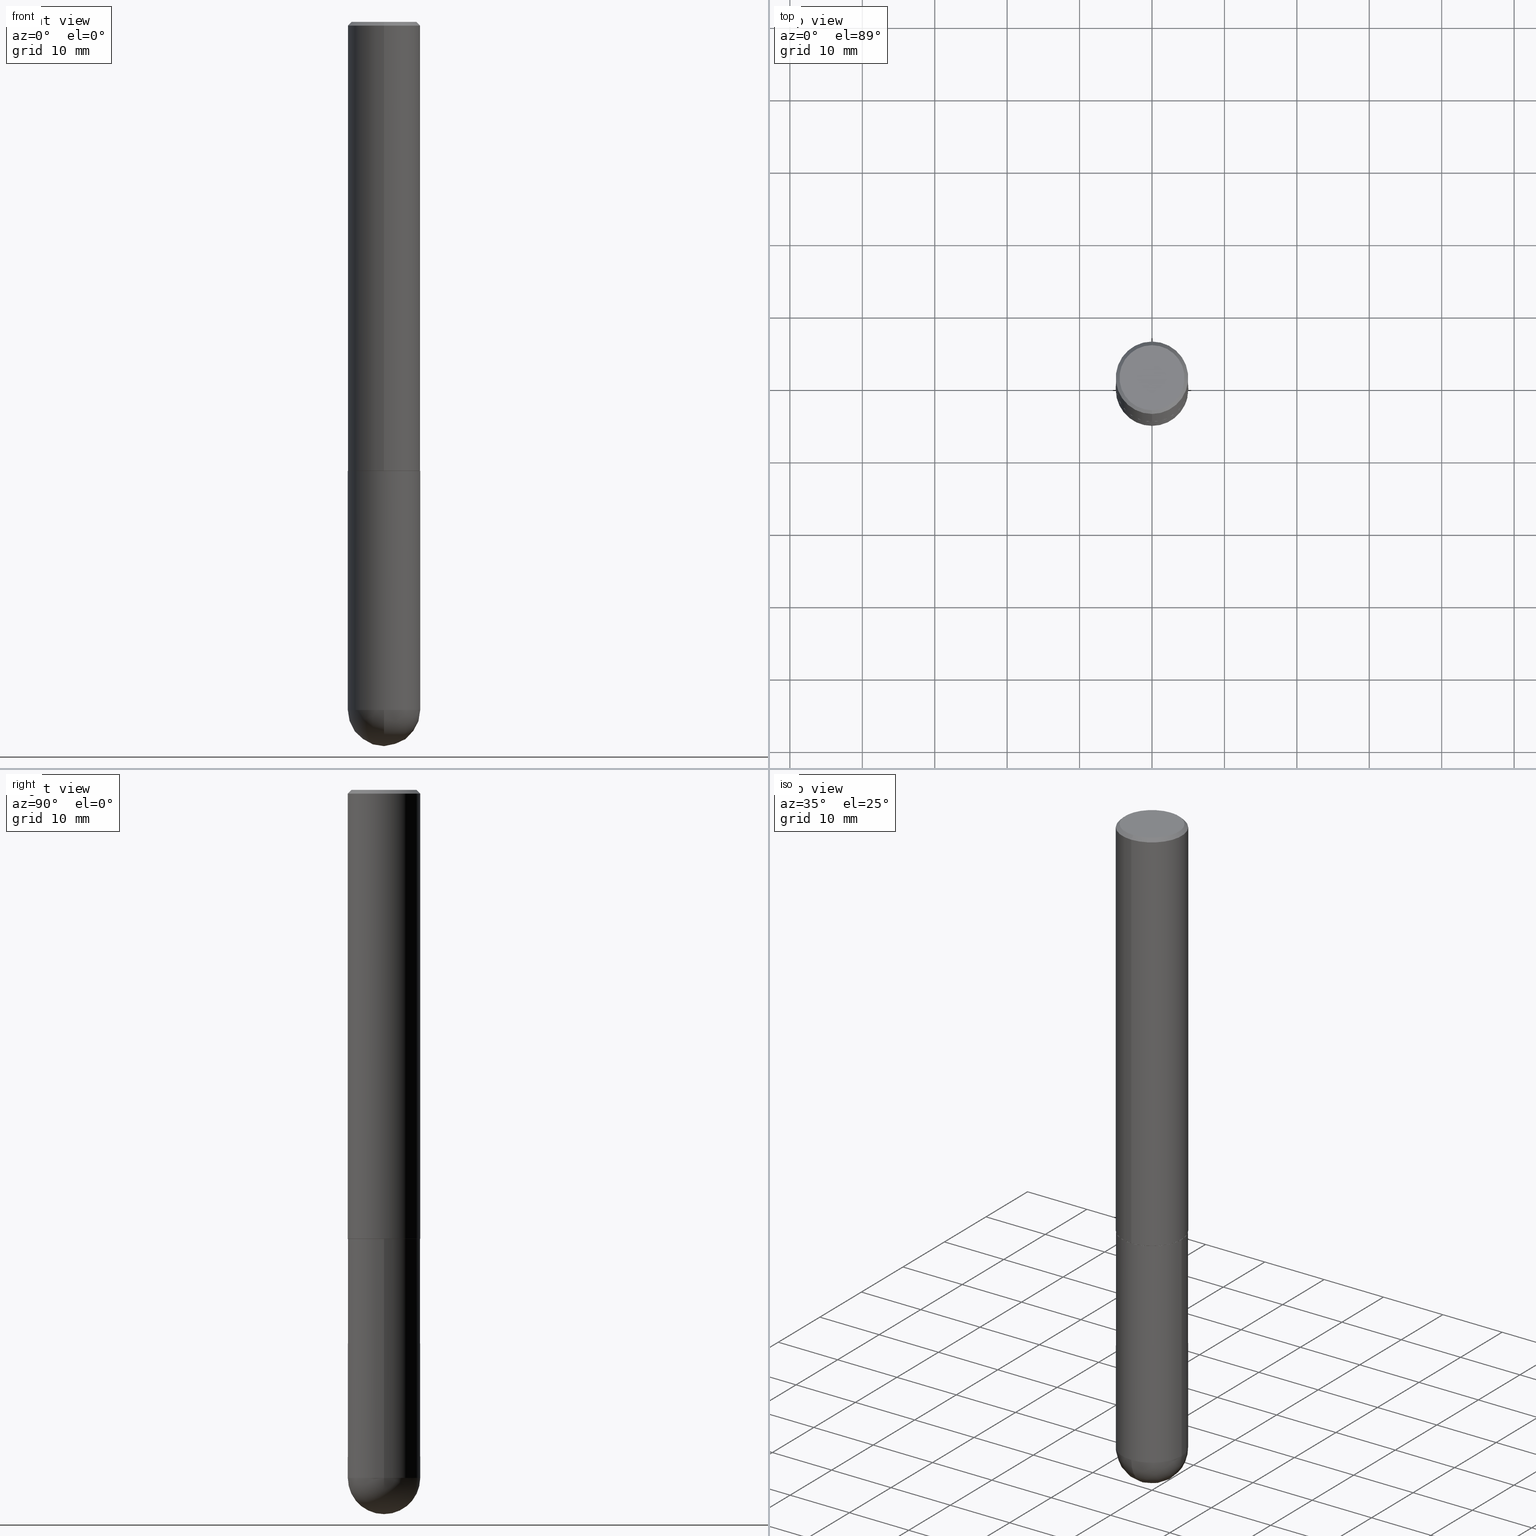
[diagram: canonical four-view strip — front | top / right | iso, engineering-drawing reading convention]
A machine part, canonical four-view strip (front | top / right | iso — engineering-drawing reading convention). The complete STEP part file that produces these views, byte-faithful:
ISO-10303-21;
HEADER;
FILE_DESCRIPTION (( 'STEP AP203' ),
    '1' );
FILE_NAME ('49614.STEP',
    '2024-04-10T12:30:28',
    ( '' ),
    ( '' ),
    'SwSTEP 2.0',
    'SolidWorks 2023',
    '' );
FILE_SCHEMA (( 'CONFIG_CONTROL_DESIGN' ));
ENDSEC;

DATA;
#1 = VERTEX_POINT ( 'NONE', #268 ) ;
#2 = AXIS2_PLACEMENT_3D ( 'NONE', #226, #303, #145 ) ;
#3 = EDGE_LOOP ( 'NONE', ( #138, #84, #357, #282, #387 ) ) ;
#4 = DATE_TIME_ROLE ( 'classification_date' ) ;
#5 = ORIENTED_EDGE ( 'NONE', *, *, #242, .T. ) ;
#6 = ORIENTED_EDGE ( 'NONE', *, *, #147, .F. ) ;
#7 = DATE_AND_TIME ( #248, #161 ) ;
#8 = DIRECTION ( 'NONE',  ( -4.937700262164462845E-15, -0.7071067811865329178, 0.7071067811865620056 ) ) ;
#9 = EDGE_CURVE ( 'NONE', #326, #388, #153, .T. ) ;
#10 = AXIS2_PLACEMENT_3D ( 'NONE', #258, #82, #76 ) ;
#11 = ORIENTED_EDGE ( 'NONE', *, *, #399, .T. ) ;
#12 = DIRECTION ( 'NONE',  ( 5.024295867787975615E-15, 0.7071067811865378028, 0.7071067811865571207 ) ) ;
#13 = CARTESIAN_POINT ( 'NONE',  ( 5.966731782860215927E-29, -8.525812390780097403E-15, -2.440900000000000070 ) ) ;
#14 = DIRECTION ( 'NONE',  ( -2.444480225679141214E-29, 3.492897042394238758E-15, 1.000000000000000000 ) ) ;
#15 = FACE_OUTER_BOUND ( 'NONE', #35, .T. ) ;
#16 = CC_DESIGN_PERSON_AND_ORGANIZATION_ASSIGNMENT ( #250, #231, ( #180 ) ) ;
#17 = LINE ( 'NONE', #281, #244 ) ;
#18 = LINE ( 'NONE', #329, #206 ) ;
#19 = FACE_OUTER_BOUND ( 'NONE', #215, .T. ) ;
#20 = DIRECTION ( 'NONE',  ( 6.982962677686265133E-15, 1.000000000000000000, -3.491137977679279029E-15 ) ) ;
#21 = EDGE_LOOP ( 'NONE', ( #189, #102, #22, #133 ) ) ;
#22 = ORIENTED_EDGE ( 'NONE', *, *, #9, .F. ) ;
#23 = DATE_AND_TIME ( #208, #175 ) ;
#24 = DIRECTION ( 'NONE',  ( -2.445468806185136597E-29, 3.491481338843145583E-15, 1.000000000000000000 ) ) ;
#25 = VECTOR ( 'NONE', #8, 39.37007874015748854 ) ;
#26 = LOCAL_TIME ( 8, 30, 28.00000000000000000, #105 ) ;
#27 = APPROVAL_STATUS ( 'not_yet_approved' ) ;
#28 = ADVANCED_FACE ( 'NONE', ( #19 ), #50, .T. ) ;
#29 = AXIS2_PLACEMENT_3D ( 'NONE', #194, #334, #20 ) ;
#30 = CARTESIAN_POINT ( 'NONE',  ( -0.1968499999999999694, -9.391806989384456184E-15, -3.740150000000000752 ) ) ;
#31 = APPLICATION_CONTEXT ( 'configuration controlled 3d designs of mechanical parts and assemblies' ) ;
#32 = PERSON_AND_ORGANIZATION_ROLE ( 'creator' ) ;
#33 = DATE_AND_TIME ( #224, #26 ) ;
#34 = AXIS2_PLACEMENT_3D ( 'NONE', #203, #118, #163 ) ;
#35 = EDGE_LOOP ( 'NONE', ( #290, #393, #214, #318 ) ) ;
#36 = ORIENTED_EDGE ( 'NONE', *, *, #324, .T. ) ;
#37 = CALENDAR_DATE ( 2024, 10, 4 ) ;
#38 = ADVANCED_BREP_SHAPE_REPRESENTATION ( '49614', ( #320, #43, #151 ), #143 ) ;
#39 = PLANE ( 'NONE',  #193 ) ;
#40 = DIRECTION ( 'NONE',  ( -2.444480225679141495E-29, 3.492897042394238758E-15, 1.000000000000000000 ) ) ;
#41 = LINE ( 'NONE', #338, #309 ) ;
#42 = CIRCLE ( 'NONE', #283, 0.1968499999999999694 ) ;
#43 = MANIFOLD_SOLID_BREP ( 'Body-Move/Copy2[2]', #60 ) ;
#44 = VERTEX_POINT ( 'NONE', #370 ) ;
#45 = COORDINATED_UNIVERSAL_TIME_OFFSET ( 5, 0, .BEHIND. ) ;
#46 = DIRECTION ( 'NONE',  ( 6.982962677686265922E-15, 1.000000000000000000, 0.000000000000000000 ) ) ;
#47 = LINE ( 'NONE', #341, #260 ) ;
#48 = CARTESIAN_POINT ( 'NONE',  ( 1.374596203102542200E-15, 0.1968499999999999694, -0.02000000000000072900 ) ) ;
#49 = CARTESIAN_POINT ( 'NONE',  ( 1.304766576325678902E-15, 0.1768499999999999239, -5.192926875021004532E-16 ) ) ;
#50 = CYLINDRICAL_SURFACE ( 'NONE', #125, 0.1968500000000001915 ) ;
#51 = CC_DESIGN_PERSON_AND_ORGANIZATION_ASSIGNMENT ( #279, #124, ( #252 ) ) ;
#52 = FACE_OUTER_BOUND ( 'NONE', #293, .T. ) ;
#53 = VERTEX_POINT ( 'NONE', #48 ) ;
#54 = CIRCLE ( 'NONE', #408, 0.1968499999999999694 ) ;
#55 = APPROVAL_PERSON_ORGANIZATION ( #305, #127, #377 ) ;
#56 = FACE_OUTER_BOUND ( 'NONE', #288, .T. ) ;
#57 = APPLICATION_PROTOCOL_DEFINITION ( 'international standard', 'config_control_design', 1994, #31 ) ;
#58 = DIRECTION ( 'NONE',  ( 1.000000000000000000, -6.982962677686266711E-15, 4.876176775795935793E-29 ) ) ;
#59 = CALENDAR_DATE ( 2024, 10, 4 ) ;
#60 = CLOSED_SHELL ( 'NONE', ( #88, #69, #313, #312, #28, #243, #187, #190 ) ) ;
#61 = CC_DESIGN_PERSON_AND_ORGANIZATION_ASSIGNMENT ( #354, #32, ( #252 ) ) ;
#62 = AXIS2_PLACEMENT_3D ( 'NONE', #272, #154, #277 ) ;
#63 = VERTEX_POINT ( 'NONE', #342 ) ;
#64 = ORIENTED_EDGE ( 'NONE', *, *, #386, .T. ) ;
#65 = VECTOR ( 'NONE', #12, 39.37007874015748854 ) ;
#66 = ORIENTED_EDGE ( 'NONE', *, *, #353, .T. ) ;
#67 = COORDINATED_UNIVERSAL_TIME_OFFSET ( 5, 0, .BEHIND. ) ;
#68 = ORIENTED_EDGE ( 'NONE', *, *, #353, .F. ) ;
#69 = ADVANCED_FACE ( 'NONE', ( #15 ), #404, .T. ) ;
#70 = CARTESIAN_POINT ( 'NONE',  ( 9.146420155453340551E-29, -1.305866392947419340E-14, -3.740150000000000752 ) ) ;
#71 = EDGE_CURVE ( 'NONE', #379, #389, #122, .T. ) ;
#72 = DIRECTION ( 'NONE',  ( 1.000000000000000000, -6.982962677686269866E-15, 0.000000000000000000 ) ) ;
#73 =( CONVERSION_BASED_UNIT ( 'INCH', #169 ) LENGTH_UNIT ( ) NAMED_UNIT ( #159 ) );
#74 = VECTOR ( 'NONE', #394, 39.37007874015748143 ) ;
#75 = DIRECTION ( 'NONE',  ( 1.000000000000000000, -6.982962677686269866E-15, 0.000000000000000000 ) ) ;
#76 = DIRECTION ( 'NONE',  ( -6.982962677686265922E-15, -1.000000000000000000, 3.492897042394239153E-15 ) ) ;
#77 = EDGE_CURVE ( 'NONE', #234, #330, #228, .T. ) ;
#78 = ORIENTED_EDGE ( 'NONE', *, *, #128, .T. ) ;
#79 = DIRECTION ( 'NONE',  ( 1.000000000000000000, -6.982962677686269866E-15, 0.000000000000000000 ) ) ;
#80 =( LENGTH_UNIT ( ) NAMED_UNIT ( * ) SI_UNIT ( $, .METRE. ) );
#81 = EDGE_LOOP ( 'NONE', ( #68, #120, #174, #306 ) ) ;
#82 = DIRECTION ( 'NONE',  ( -2.444480225679141495E-29, 3.492897042394238758E-15, 1.000000000000000000 ) ) ;
#83 = FACE_OUTER_BOUND ( 'NONE', #3, .T. ) ;
#84 = ORIENTED_EDGE ( 'NONE', *, *, #294, .T. ) ;
#85 = AXIS2_PLACEMENT_3D ( 'NONE', #119, #148, #199 ) ;
#86 = CIRCLE ( 'NONE', #10, 0.1768499999999999239 ) ;
#87 = COORDINATED_UNIVERSAL_TIME_OFFSET ( 5, 0, .BEHIND. ) ;
#88 = ADVANCED_FACE ( 'NONE', ( #236 ), #141, .T. ) ;
#89 = ORIENTED_EDGE ( 'NONE', *, *, #152, .T. ) ;
#90 = PERSON_AND_ORGANIZATION ( #276, #96 ) ;
#91 = CC_DESIGN_PERSON_AND_ORGANIZATION_ASSIGNMENT ( #90, #349, ( #240 ) ) ;
#92 = UNCERTAINTY_MEASURE_WITH_UNIT (LENGTH_MEASURE( 1.000000000000000082E-05 ), #73, 'distance_accuracy_value', 'NONE');
#93 = DIRECTION ( 'NONE',  ( 0.000000000000000000, 0.000000000000000000, 1.000000000000000000 ) ) ;
#94 = ADVANCED_FACE ( 'NONE', ( #56 ), #202, .F. ) ;
#95 = CONICAL_SURFACE ( 'NONE', #385, 0.1958499999999999963, 0.7853981633974311816 ) ;
#96 = ORGANIZATION ( 'UNSPECIFIED', 'UNSPECIFIED', '' ) ;
#97 = ORIENTED_EDGE ( 'NONE', *, *, #220, .F. ) ;
#98 = ORIENTED_EDGE ( 'NONE', *, *, #128, .F. ) ;
#99 = APPROVAL_STATUS ( 'not_yet_approved' ) ;
#100 = CIRCLE ( 'NONE', #188, 0.1968500000000000250 ) ;
#101 = EDGE_CURVE ( 'NONE', #358, #205, #42, .T. ) ;
#102 = ORIENTED_EDGE ( 'NONE', *, *, #286, .T. ) ;
#103 = CARTESIAN_POINT ( 'NONE',  ( 0.1968500000000000250, -9.896953003084774574E-15, -2.440900000000000070 ) ) ;
#104 = ORIENTED_EDGE ( 'NONE', *, *, #278, .F. ) ;
#105 = COORDINATED_UNIVERSAL_TIME_OFFSET ( 5, 0, .BEHIND. ) ;
#106 = ADVANCED_FACE ( 'NONE', ( #196 ), #116, .T. ) ;
#107 = DIRECTION ( 'NONE',  ( -1.000000000000000000, 6.982962677686265922E-15, -4.883557194083113462E-29 ) ) ;
#108 = DIRECTION ( 'NONE',  ( -1.000000000000000000, 6.982962677686265922E-15, -4.876176775795935793E-29 ) ) ;
#109 = PRODUCT_DEFINITION_SHAPE ( 'NONE', 'NONE',  #180 ) ;
#110 = FACE_OUTER_BOUND ( 'NONE', #247, .T. ) ;
#111 = AXIS2_PLACEMENT_3D ( 'NONE', #348, #149, #307 ) ;
#112 = ORIENTED_EDGE ( 'NONE', *, *, #147, .T. ) ;
#113 = CC_DESIGN_APPROVAL ( #127, ( #252 ) ) ;
#114 = DIRECTION ( 'NONE',  ( 1.000000000000000000, -6.982962677686262766E-15, 0.000000000000000000 ) ) ;
#115 = SPHERICAL_SURFACE ( 'NONE', #210, 0.1968500000000001360 ) ;
#116 = CYLINDRICAL_SURFACE ( 'NONE', #150, 0.1968499999999999694 ) ;
#117 = CARTESIAN_POINT ( 'NONE',  ( 0.1968499999999999694, -1.216510656783075637E-14, -3.740150000000000752 ) ) ;
#118 = DIRECTION ( 'NONE',  ( -2.445468806185136597E-29, 3.491481338843145583E-15, 1.000000000000000000 ) ) ;
#119 = CARTESIAN_POINT ( 'NONE',  ( 0.000000000000000000, 0.000000000000000000, 0.000000000000000000 ) ) ;
#120 = ORIENTED_EDGE ( 'NONE', *, *, #220, .T. ) ;
#121 = CIRCLE ( 'NONE', #2, 0.1968500000000000527 ) ;
#122 = CIRCLE ( 'NONE', #343, 0.1958499999999999963 ) ;
#123 = EDGE_LOOP ( 'NONE', ( #363, #11, #177, #142, #5 ) ) ;
#124 = PERSON_AND_ORGANIZATION_ROLE ( 'design_supplier' ) ;
#125 = AXIS2_PLACEMENT_3D ( 'NONE', #262, #207, #146 ) ;
#126 = APPROVAL_ROLE ( '' ) ;
#127 = APPROVAL ( #266, 'UNSPECIFIED' ) ;
#128 = EDGE_CURVE ( 'NONE', #388, #326, #322, .T. ) ;
#129 = ORIENTED_EDGE ( 'NONE', *, *, #374, .T. ) ;
#130 = VERTEX_POINT ( 'NONE', #49 ) ;
#131 = AXIS2_PLACEMENT_3D ( 'NONE', #183, #315, #310 ) ;
#132 = DIRECTION ( 'NONE',  ( 2.444480225679141214E-29, -3.492897042394238758E-15, -1.000000000000000000 ) ) ;
#133 = ORIENTED_EDGE ( 'NONE', *, *, #274, .F. ) ;
#134 = CARTESIAN_POINT ( 'NONE',  ( 8.815300377539453183E-29, -1.353284629761424370E-14, -3.740150000000000308 ) ) ;
#135 = CARTESIAN_POINT ( 'NONE',  ( 1.374596203102601167E-15, 0.1968499999999914762, -2.440900000000000514 ) ) ;
#136 = DIRECTION ( 'NONE',  ( 2.444480225679141495E-29, -3.492897042394238758E-15, -1.000000000000000000 ) ) ;
#137 = CYLINDRICAL_SURFACE ( 'NONE', #34, 0.1968499999999999694 ) ;
#138 = ORIENTED_EDGE ( 'NONE', *, *, #399, .F. ) ;
#139 = SPHERICAL_SURFACE ( 'NONE', #217, 0.1968500000000001360 ) ;
#140 =( NAMED_UNIT ( * ) SI_UNIT ( $, .STERADIAN. ) SOLID_ANGLE_UNIT ( ) );
#141 = CONICAL_SURFACE ( 'NONE', #237, 0.1958499999999999963, 0.7853981633974311816 ) ;
#142 = ORIENTED_EDGE ( 'NONE', *, *, #212, .F. ) ;
#143 =( GEOMETRIC_REPRESENTATION_CONTEXT ( 3 ) GLOBAL_UNCERTAINTY_ASSIGNED_CONTEXT ( ( #92 ) ) GLOBAL_UNIT_ASSIGNED_CONTEXT ( ( #73, #300, #140 ) ) REPRESENTATION_CONTEXT ( 'NONE', 'WORKASPACE' ) );
#144 = DIRECTION ( 'NONE',  ( -2.445468806185136877E-29, 3.491481338843145188E-15, 1.000000000000000000 ) ) ;
#145 = DIRECTION ( 'NONE',  ( -6.982962677686265133E-15, -1.000000000000000000, 3.491137977679279029E-15 ) ) ;
#146 = DIRECTION ( 'NONE',  ( -6.982962677686265133E-15, -1.000000000000000000, 3.492897042394238758E-15 ) ) ;
#147 = EDGE_CURVE ( 'NONE', #227, #234, #411, .T. ) ;
#148 = DIRECTION ( 'NONE',  ( -2.444480225679141495E-29, 3.492897042394238758E-15, 1.000000000000000000 ) ) ;
#149 = DIRECTION ( 'NONE',  ( -2.444480225679141495E-29, 3.492897042394238758E-15, 1.000000000000000000 ) ) ;
#150 = AXIS2_PLACEMENT_3D ( 'NONE', #178, #24, #58 ) ;
#151 = AXIS2_PLACEMENT_3D ( 'NONE', #179, #93, #380 ) ;
#152 = EDGE_CURVE ( 'NONE', #1, #155, #100, .T. ) ;
#153 = CIRCLE ( 'NONE', #182, 0.1968500000000003303 ) ;
#154 = DIRECTION ( 'NONE',  ( -1.000000000000000000, 7.105427357601001070E-15, -4.926315508542082329E-29 ) ) ;
#155 = VERTEX_POINT ( 'NONE', #103 ) ;
#156 = ORIENTED_EDGE ( 'NONE', *, *, #77, .F. ) ;
#157 = LINE ( 'NONE', #225, #74 ) ;
#158 = ORIENTED_EDGE ( 'NONE', *, *, #347, .T. ) ;
#159 = DIMENSIONAL_EXPONENTS ( 1.000000000000000000, 0.000000000000000000, 0.000000000000000000, 0.000000000000000000, 0.000000000000000000, 0.000000000000000000, 0.000000000000000000 ) ;
#160 = AXIS2_PLACEMENT_3D ( 'NONE', #264, #403, #222 ) ;
#161 = LOCAL_TIME ( 8, 30, 28.00000000000000000, #45 ) ;
#162 = DIRECTION ( 'NONE',  ( -6.982962677686265922E-15, -1.000000000000000000, 4.184602492209747448E-15 ) ) ;
#163 = DIRECTION ( 'NONE',  ( 1.000000000000000000, -6.982962677686266711E-15, 4.876176775795935793E-29 ) ) ;
#164 = DIRECTION ( 'NONE',  ( -2.445468806185136597E-29, 3.491481338843145583E-15, 1.000000000000000000 ) ) ;
#165 = CARTESIAN_POINT ( 'NONE',  ( 5.966731782860215927E-29, -8.525812390780097403E-15, -2.440900000000000070 ) ) ;
#166 = CARTESIAN_POINT ( 'NONE',  ( 1.395150661665018026E-15, 0.1958499999999914754, -2.440900000000000958 ) ) ;
#167 = DIRECTION ( 'NONE',  ( -6.982962677686265922E-15, -1.000000000000000000, 4.184602492209747448E-15 ) ) ;
#168 = DIRECTION ( 'NONE',  ( 6.982962677686265922E-15, 1.000000000000000000, -2.775563112689114723E-15 ) ) ;
#169 = LENGTH_MEASURE_WITH_UNIT ( LENGTH_MEASURE( 0.02539999999999999897 ), #80 );
#170 = CARTESIAN_POINT ( 'NONE',  ( 9.146420155453340551E-29, -1.305866392947419340E-14, -3.740150000000000752 ) ) ;
#171 = COORDINATED_UNIVERSAL_TIME_OFFSET ( 5, 0, .BEHIND. ) ;
#172 = CARTESIAN_POINT ( 'NONE',  ( 0.1968499999999999694, -1.374596203102541411E-15, 9.598753983154298056E-30 ) ) ;
#173 = CIRCLE ( 'NONE', #241, 0.1958499999999999963 ) ;
#174 = ORIENTED_EDGE ( 'NONE', *, *, #369, .T. ) ;
#175 = LOCAL_TIME ( 8, 30, 28.00000000000000000, #171 ) ;
#176 = DATE_TIME_ROLE ( 'creation_date' ) ;
#177 = ORIENTED_EDGE ( 'NONE', *, *, #327, .F. ) ;
#178 = CARTESIAN_POINT ( 'NONE',  ( 0.000000000000000000, 0.000000000000000000, 0.000000000000000000 ) ) ;
#179 = CARTESIAN_POINT ( 'NONE',  ( 0.000000000000000000, 0.000000000000000000, 0.000000000000000000 ) ) ;
#180 = PRODUCT_DEFINITION ( 'UNKNOWN', '', #252, #209 ) ;
#181 = APPLICATION_PROTOCOL_DEFINITION ( 'international standard', 'config_control_design', 1994, #257 ) ;
#182 = AXIS2_PLACEMENT_3D ( 'NONE', #298, #259, #401 ) ;
#183 = CARTESIAN_POINT ( 'NONE',  ( 5.969144809017299038E-29, -8.522356799982232966E-15, -2.440900000000000070 ) ) ;
#184 = ORIENTED_EDGE ( 'NONE', *, *, #316, .F. ) ;
#185 = CC_DESIGN_DATE_AND_TIME_ASSIGNMENT ( #33, #4, ( #360 ) ) ;
#186 = SECURITY_CLASSIFICATION_LEVEL ( 'unclassified' ) ;
#187 = ADVANCED_FACE ( 'NONE', ( #402 ), #325, .F. ) ;
#188 = AXIS2_PLACEMENT_3D ( 'NONE', #292, #221, #114 ) ;
#189 = ORIENTED_EDGE ( 'NONE', *, *, #71, .T. ) ;
#190 = ADVANCED_FACE ( 'NONE', ( #52 ), #39, .F. ) ;
#191 = LINE ( 'NONE', #172, #359 ) ;
#192 = CARTESIAN_POINT ( 'NONE',  ( 1.398703375343789145E-15, 0.1968499999999918093, -2.439900000000000624 ) ) ;
#193 = AXIS2_PLACEMENT_3D ( 'NONE', #255, #132, #361 ) ;
#194 = CARTESIAN_POINT ( 'NONE',  ( 4.888960451358293429E-31, -6.985794084788491174E-17, -0.02000000000000004205 ) ) ;
#195 = DIRECTION ( 'NONE',  ( 6.982962677686265922E-15, 1.000000000000000000, -2.775563112689114723E-15 ) ) ;
#196 = FACE_OUTER_BOUND ( 'NONE', #123, .T. ) ;
#197 = DATE_AND_TIME ( #37, #218 ) ;
#198 = FACE_OUTER_BOUND ( 'NONE', #219, .T. ) ;
#199 = DIRECTION ( 'NONE',  ( -6.982962677686265133E-15, -1.000000000000000000, 3.492897042394238758E-15 ) ) ;
#200 = CARTESIAN_POINT ( 'NONE',  ( 1.391597947986215747E-15, 0.1958499999999914754, -2.440900000000000958 ) ) ;
#201 = CARTESIAN_POINT ( 'NONE',  ( 8.815300377539453183E-29, -1.353284629761424370E-14, -3.740150000000000308 ) ) ;
#202 = PLANE ( 'NONE',  #249 ) ;
#203 = CARTESIAN_POINT ( 'NONE',  ( 0.000000000000000000, 0.000000000000000000, 0.000000000000000000 ) ) ;
#204 = CONICAL_SURFACE ( 'NONE', #29, 0.1968500000000000527, 0.7853981633974479459 ) ;
#205 = VERTEX_POINT ( 'NONE', #117 ) ;
#206 = VECTOR ( 'NONE', #372, 39.37007874015748143 ) ;
#207 = DIRECTION ( 'NONE',  ( -2.444480225679141495E-29, 3.492897042394238758E-15, 1.000000000000000000 ) ) ;
#208 = CALENDAR_DATE ( 2024, 10, 4 ) ;
#209 = DESIGN_CONTEXT ( 'detailed design', #257, 'design' ) ;
#210 = AXIS2_PLACEMENT_3D ( 'NONE', #201, #267, #195 ) ;
#211 = DIRECTION ( 'NONE',  ( -2.444480225679141495E-29, 3.492897042394238758E-15, 1.000000000000000000 ) ) ;
#212 = EDGE_CURVE ( 'NONE', #205, #155, #191, .T. ) ;
#213 = ORIENTED_EDGE ( 'NONE', *, *, #274, .T. ) ;
#214 = ORIENTED_EDGE ( 'NONE', *, *, #369, .F. ) ;
#215 = EDGE_LOOP ( 'NONE', ( #321, #78, #36, #245 ) ) ;
#216 = SHAPE_DEFINITION_REPRESENTATION ( #109, #38 ) ;
#217 = AXIS2_PLACEMENT_3D ( 'NONE', #134, #107, #168 ) ;
#218 = LOCAL_TIME ( 8, 30, 28.00000000000000000, #67 ) ;
#219 = EDGE_LOOP ( 'NONE', ( #97, #184, #64, #129 ) ) ;
#220 = EDGE_CURVE ( 'NONE', #44, #63, #157, .T. ) ;
#221 = DIRECTION ( 'NONE',  ( -2.445468806185136597E-29, 3.491481338843145583E-15, 1.000000000000000000 ) ) ;
#222 = DIRECTION ( 'NONE',  ( -6.982962677686265133E-15, -1.000000000000000000, 3.491137977679279029E-15 ) ) ;
#223 = ORIENTED_EDGE ( 'NONE', *, *, #242, .F. ) ;
#224 = CALENDAR_DATE ( 2024, 10, 4 ) ;
#225 = CARTESIAN_POINT ( 'NONE',  ( -1.350489030861325626E-15, -0.1968500000000001082, -0.01999999999999935510 ) ) ;
#226 = CARTESIAN_POINT ( 'NONE',  ( 4.888960451358293429E-31, -6.985794084788491174E-17, -0.02000000000000004205 ) ) ;
#227 = VERTEX_POINT ( 'NONE', #263 ) ;
#228 = CIRCLE ( 'NONE', #291, 0.1968499999999999694 ) ;
#229 = DIRECTION ( 'NONE',  ( -2.445468806185136597E-29, 3.491481338843145583E-15, 1.000000000000000000 ) ) ;
#230 = ORIENTED_EDGE ( 'NONE', *, *, #327, .T. ) ;
#231 = PERSON_AND_ORGANIZATION_ROLE ( 'creator' ) ;
#232 = DIRECTION ( 'NONE',  ( -2.445468806185136597E-29, 3.491481338843145583E-15, 1.000000000000000000 ) ) ;
#233 = APPROVAL ( #99, 'UNSPECIFIED' ) ;
#234 = VERTEX_POINT ( 'NONE', #371 ) ;
#235 = CARTESIAN_POINT ( 'NONE',  ( 5.966731782860215927E-29, -8.525812390780097403E-15, -2.440900000000000070 ) ) ;
#236 = FACE_OUTER_BOUND ( 'NONE', #21, .T. ) ;
#237 = AXIS2_PLACEMENT_3D ( 'NONE', #13, #376, #366 ) ;
#238 = EDGE_LOOP ( 'NONE', ( #6, #158, #254, #156 ) ) ;
#239 = CC_DESIGN_PERSON_AND_ORGANIZATION_ASSIGNMENT ( #319, #390, ( #360 ) ) ;
#240 = PRODUCT ( '49614', '49614', '', ( #409 ) ) ;
#241 = AXIS2_PLACEMENT_3D ( 'NONE', #235, #40, #162 ) ;
#242 = EDGE_CURVE ( 'NONE', #205, #234, #269, .T. ) ;
#243 = ADVANCED_FACE ( 'NONE', ( #368 ), #95, .T. ) ;
#244 = VECTOR ( 'NONE', #211, 39.37007874015748143 ) ;
#245 = ORIENTED_EDGE ( 'NONE', *, *, #374, .F. ) ;
#246 = ORIENTED_EDGE ( 'NONE', *, *, #101, .F. ) ;
#247 = EDGE_LOOP ( 'NONE', ( #345, #112, #223, #246 ) ) ;
#248 = CALENDAR_DATE ( 2024, 10, 4 ) ;
#249 = AXIS2_PLACEMENT_3D ( 'NONE', #135, #256, #108 ) ;
#250 = PERSON_AND_ORGANIZATION ( #276, #96 ) ;
#251 = AXIS2_PLACEMENT_3D ( 'NONE', #396, #136, #392 ) ;
#252 = PRODUCT_DEFINITION_FORMATION_WITH_SPECIFIED_SOURCE ( 'ANY', '', #240, .NOT_KNOWN. ) ;
#253 = DIRECTION ( 'NONE',  ( 1.000000000000000000, -6.982962677686265922E-15, 4.883557194083112340E-29 ) ) ;
#254 = ORIENTED_EDGE ( 'NONE', *, *, #294, .F. ) ;
#255 = CARTESIAN_POINT ( 'NONE',  ( 1.234936949548815604E-15, 0.1768499999999999239, -5.685057647247607263E-16 ) ) ;
#256 = DIRECTION ( 'NONE',  ( 2.438088387897960049E-29, -3.491481338843145188E-15, -1.000000000000000000 ) ) ;
#257 = APPLICATION_CONTEXT ( 'configuration controlled 3d designs of mechanical parts and assemblies' ) ;
#258 = CARTESIAN_POINT ( 'NONE',  ( -2.406007882312265336E-45, 3.437924237562976850E-31, 9.842615444532026278E-17 ) ) ;
#259 = DIRECTION ( 'NONE',  ( -2.444480225679141495E-29, 3.492897042394238758E-15, 1.000000000000000000 ) ) ;
#260 = VECTOR ( 'NONE', #297, 39.37007874015748143 ) ;
#261 = DIRECTION ( 'NONE',  ( -2.444480225679141495E-29, 3.492897042394238758E-15, 1.000000000000000000 ) ) ;
#262 = CARTESIAN_POINT ( 'NONE',  ( 0.000000000000000000, 0.000000000000000000, 0.000000000000000000 ) ) ;
#263 = CARTESIAN_POINT ( 'NONE',  ( 9.305107886238245984E-29, -1.420809081304490838E-14, -3.937000000000000721 ) ) ;
#264 = CARTESIAN_POINT ( 'NONE',  ( 4.888960451358293429E-31, -6.985794084788491174E-17, -0.02000000000000004205 ) ) ;
#265 = ORIENTED_EDGE ( 'NONE', *, *, #71, .F. ) ;
#266 = APPROVAL_STATUS ( 'not_yet_approved' ) ;
#267 = DIRECTION ( 'NONE',  ( -1.000000000000000000, 6.982962677686265922E-15, -4.883557194083113462E-29 ) ) ;
#268 = CARTESIAN_POINT ( 'NONE',  ( -0.1968500000000000250, -9.391806989384456184E-15, -2.440900000000000070 ) ) ;
#269 = CIRCLE ( 'NONE', #314, 0.1968499999999999694 ) ;
#270 = CC_DESIGN_DATE_AND_TIME_ASSIGNMENT ( #23, #176, ( #180 ) ) ;
#271 = APPROVAL_ROLE ( '' ) ;
#272 = CARTESIAN_POINT ( 'NONE',  ( 8.815300377539453183E-29, -1.353284629761424370E-14, -3.740150000000000308 ) ) ;
#273 = PRODUCT_RELATED_PRODUCT_CATEGORY ( 'detail', '', ( #240 ) ) ;
#274 = EDGE_CURVE ( 'NONE', #379, #326, #364, .T. ) ;
#275 = LOCAL_TIME ( 8, 30, 28.00000000000000000, #87 ) ;
#276 = PERSON ( 'UNSPECIFIED', 'UNSPECIFIED', 'UNSPECIFIED', ('UNSPECIFIED'), ('UNSPECIFIED'), ('UNSPECIFIED') ) ;
#277 = DIRECTION ( 'NONE',  ( -7.105427357601001070E-15, -1.000000000000000000, 0.000000000000000000 ) ) ;
#278 = EDGE_CURVE ( 'NONE', #389, #379, #173, .T. ) ;
#279 = PERSON_AND_ORGANIZATION ( #276, #96 ) ;
#280 = CARTESIAN_POINT ( 'NONE',  ( -1.398703375343667858E-15, -0.1968500000000133754, -3.740150000000000308 ) ) ;
#281 = CARTESIAN_POINT ( 'NONE',  ( -1.374596203102542594E-15, -0.1968500000000001915, 6.875767827953065398E-16 ) ) ;
#282 = ORIENTED_EDGE ( 'NONE', *, *, #212, .T. ) ;
#283 = AXIS2_PLACEMENT_3D ( 'NONE', #170, #301, #75 ) ;
#284 = CC_DESIGN_APPROVAL ( #381, ( #180 ) ) ;
#285 = ORIENTED_EDGE ( 'NONE', *, *, #316, .T. ) ;
#286 = EDGE_CURVE ( 'NONE', #389, #388, #299, .T. ) ;
#287 = ADVANCED_FACE ( 'NONE', ( #110 ), #139, .T. ) ;
#288 = EDGE_LOOP ( 'NONE', ( #230, #89 ) ) ;
#289 = CARTESIAN_POINT ( 'NONE',  ( -1.367613240424795443E-15, -0.1958500000000085450, -2.440899999999999181 ) ) ;
#290 = ORIENTED_EDGE ( 'NONE', *, *, #9, .T. ) ;
#291 = AXIS2_PLACEMENT_3D ( 'NONE', #339, #164, #373 ) ;
#292 = CARTESIAN_POINT ( 'NONE',  ( 5.969144809017299038E-29, -8.522356799982232966E-15, -2.440900000000000070 ) ) ;
#293 = EDGE_LOOP ( 'NONE', ( #285, #66 ) ) ;
#294 = EDGE_CURVE ( 'NONE', #330, #358, #54, .T. ) ;
#295 = APPROVAL_DATE_TIME ( #7, #233 ) ;
#296 = CARTESIAN_POINT ( 'NONE',  ( 5.966731782860215927E-29, -8.525812390780097403E-15, -2.440900000000000070 ) ) ;
#297 = DIRECTION ( 'NONE',  ( 4.937700262164545676E-15, 0.7071067811865447972, -0.7071067811865502373 ) ) ;
#298 = CARTESIAN_POINT ( 'NONE',  ( 5.964287302634537555E-29, -8.522319493737701952E-15, -2.439899999999999736 ) ) ;
#299 = LINE ( 'NONE', #200, #65 ) ;
#300 =( NAMED_UNIT ( * ) PLANE_ANGLE_UNIT ( ) SI_UNIT ( $, .RADIAN. ) );
#301 = DIRECTION ( 'NONE',  ( -2.445468806185136597E-29, 3.491481338843145583E-15, 1.000000000000000000 ) ) ;
#302 = AXIS2_PLACEMENT_3D ( 'NONE', #400, #253, #46 ) ;
#303 = DIRECTION ( 'NONE',  ( -2.444480225679141495E-29, 3.492897042394238758E-15, 1.000000000000000000 ) ) ;
#304 = ORIENTED_EDGE ( 'NONE', *, *, #278, .T. ) ;
#305 = PERSON_AND_ORGANIZATION ( #276, #96 ) ;
#306 = ORIENTED_EDGE ( 'NONE', *, *, #386, .F. ) ;
#307 = DIRECTION ( 'NONE',  ( -6.982962677686265133E-15, -1.000000000000000000, 4.163344669033668535E-15 ) ) ;
#308 = CIRCLE ( 'NONE', #131, 0.1968500000000000250 ) ;
#309 = VECTOR ( 'NONE', #406, 39.37007874015748143 ) ;
#310 = DIRECTION ( 'NONE',  ( 1.000000000000000000, -6.982962677686262766E-15, 0.000000000000000000 ) ) ;
#311 = PERSON_AND_ORGANIZATION ( #276, #96 ) ;
#312 = ADVANCED_FACE ( 'NONE', ( #198 ), #204, .T. ) ;
#313 = ADVANCED_FACE ( 'NONE', ( #375 ), #332, .T. ) ;
#314 = AXIS2_PLACEMENT_3D ( 'NONE', #70, #232, #79 ) ;
#315 = DIRECTION ( 'NONE',  ( -2.445468806185136597E-29, 3.491481338843145583E-15, 1.000000000000000000 ) ) ;
#316 = EDGE_CURVE ( 'NONE', #130, #44, #86, .T. ) ;
#317 = DIRECTION ( 'NONE',  ( -6.982962677686265922E-15, -1.000000000000000000, 3.492897042394239153E-15 ) ) ;
#318 = ORIENTED_EDGE ( 'NONE', *, *, #324, .F. ) ;
#319 = PERSON_AND_ORGANIZATION ( #276, #96 ) ;
#320 = MANIFOLD_SOLID_BREP ( 'Body-Move/Copy2[1]', #410 ) ;
#321 = ORIENTED_EDGE ( 'NONE', *, *, #405, .F. ) ;
#322 = CIRCLE ( 'NONE', #111, 0.1968500000000003303 ) ;
#323 = ORIENTED_EDGE ( 'NONE', *, *, #286, .F. ) ;
#324 = EDGE_CURVE ( 'NONE', #326, #63, #17, .T. ) ;
#325 = PLANE ( 'NONE',  #398 ) ;
#326 = VERTEX_POINT ( 'NONE', #355 ) ;
#327 = EDGE_CURVE ( 'NONE', #155, #1, #308, .T. ) ;
#328 = DIRECTION ( 'NONE',  ( -6.982962677686265922E-15, -1.000000000000000000, 4.184602492209747448E-15 ) ) ;
#329 = CARTESIAN_POINT ( 'NONE',  ( -0.1968499999999999694, 1.398703375343756999E-15, -9.682923725166782276E-30 ) ) ;
#330 = VERTEX_POINT ( 'NONE', #30 ) ;
#331 = PERSON_AND_ORGANIZATION ( #276, #96 ) ;
#332 = CONICAL_SURFACE ( 'NONE', #251, 0.1968500000000000527, 0.7853981633974479459 ) ;
#333 = CC_DESIGN_SECURITY_CLASSIFICATION ( #360, ( #252 ) ) ;
#334 = DIRECTION ( 'NONE',  ( 2.444480225679141495E-29, -3.492897042394238758E-15, -1.000000000000000000 ) ) ;
#335 = EDGE_LOOP ( 'NONE', ( #265, #104 ) ) ;
#336 = APPROVAL_DATE_TIME ( #197, #381 ) ;
#337 = DIRECTION ( 'NONE',  ( -6.982962677686265922E-15, -1.000000000000000000, 3.492897042394238758E-15 ) ) ;
#338 = CARTESIAN_POINT ( 'NONE',  ( 1.398703375343758182E-15, 0.1968500000000001915, -6.875767827953065398E-16 ) ) ;
#339 = CARTESIAN_POINT ( 'NONE',  ( 9.146420155453340551E-29, -1.305866392947419340E-14, -3.740150000000000752 ) ) ;
#340 = CARTESIAN_POINT ( 'NONE',  ( 9.146420155453340551E-29, -1.305866392947419340E-14, -3.740150000000000752 ) ) ;
#341 = CARTESIAN_POINT ( 'NONE',  ( 1.374596203102542200E-15, 0.1968499999999999694, -0.02000000000000072900 ) ) ;
#342 = CARTESIAN_POINT ( 'NONE',  ( -1.350489030861325626E-15, -0.1968500000000001082, -0.01999999999999935510 ) ) ;
#343 = AXIS2_PLACEMENT_3D ( 'NONE', #395, #407, #167 ) ;
#344 = CC_DESIGN_APPROVAL ( #233, ( #360 ) ) ;
#345 = ORIENTED_EDGE ( 'NONE', *, *, #347, .F. ) ;
#346 = DATE_AND_TIME ( #59, #275 ) ;
#347 = EDGE_CURVE ( 'NONE', #227, #358, #378, .T. ) ;
#348 = CARTESIAN_POINT ( 'NONE',  ( 5.964287302634537555E-29, -8.522319493737701952E-15, -2.439899999999999736 ) ) ;
#349 = PERSON_AND_ORGANIZATION_ROLE ( 'design_owner' ) ;
#350 = AXIS2_PLACEMENT_3D ( 'NONE', #351, #412, #317 ) ;
#351 = CARTESIAN_POINT ( 'NONE',  ( -2.406007882312265336E-45, 3.437924237562976850E-31, 9.842615444532026278E-17 ) ) ;
#352 = APPROVAL_DATE_TIME ( #346, #127 ) ;
#353 = EDGE_CURVE ( 'NONE', #44, #130, #367, .T. ) ;
#354 = PERSON_AND_ORGANIZATION ( #276, #96 ) ;
#355 = CARTESIAN_POINT ( 'NONE',  ( -1.374596203102484021E-15, -0.1968500000000088512, -2.439899999999998847 ) ) ;
#356 = CIRCLE ( 'NONE', #160, 0.1968500000000000527 ) ;
#357 = ORIENTED_EDGE ( 'NONE', *, *, #101, .T. ) ;
#358 = VERTEX_POINT ( 'NONE', #280 ) ;
#359 = VECTOR ( 'NONE', #144, 39.37007874015748143 ) ;
#360 = SECURITY_CLASSIFICATION ( '', '', #186 ) ;
#361 = DIRECTION ( 'NONE',  ( 6.982962677686265922E-15, 1.000000000000000000, -3.492897042394238758E-15 ) ) ;
#362 = FACE_OUTER_BOUND ( 'NONE', #238, .T. ) ;
#363 = ORIENTED_EDGE ( 'NONE', *, *, #77, .T. ) ;
#364 = LINE ( 'NONE', #289, #25 ) ;
#365 = CARTESIAN_POINT ( 'NONE',  ( -1.367613240424795443E-15, -0.1958500000000085450, -2.440899999999999181 ) ) ;
#366 = DIRECTION ( 'NONE',  ( -6.982962677686265922E-15, -1.000000000000000000, 4.184602492209747448E-15 ) ) ;
#367 = CIRCLE ( 'NONE', #350, 0.1768499999999999239 ) ;
#368 = FACE_OUTER_BOUND ( 'NONE', #397, .T. ) ;
#369 = EDGE_CURVE ( 'NONE', #63, #53, #121, .T. ) ;
#370 = CARTESIAN_POINT ( 'NONE',  ( -1.281884050883610098E-15, -0.1768499999999999239, 7.161449963927411513E-16 ) ) ;
#371 = CARTESIAN_POINT ( 'NONE',  ( 1.374596203102631736E-15, 0.1968499999999867855, -3.740150000000001196 ) ) ;
#372 = DIRECTION ( 'NONE',  ( -2.445468806185136877E-29, 3.491481338843145188E-15, 1.000000000000000000 ) ) ;
#373 = DIRECTION ( 'NONE',  ( 1.000000000000000000, -6.982962677686269866E-15, 0.000000000000000000 ) ) ;
#374 = EDGE_CURVE ( 'NONE', #53, #63, #356, .T. ) ;
#375 = FACE_OUTER_BOUND ( 'NONE', #81, .T. ) ;
#376 = DIRECTION ( 'NONE',  ( -2.444480225679141495E-29, 3.492897042394238758E-15, 1.000000000000000000 ) ) ;
#377 = APPROVAL_ROLE ( '' ) ;
#378 = CIRCLE ( 'NONE', #62, 0.1968500000000001360 ) ;
#379 = VERTEX_POINT ( 'NONE', #365 ) ;
#380 = DIRECTION ( 'NONE',  ( 1.000000000000000000, 0.000000000000000000, 0.000000000000000000 ) ) ;
#381 = APPROVAL ( #27, 'UNSPECIFIED' ) ;
#382 = ADVANCED_FACE ( 'NONE', ( #83 ), #137, .T. ) ;
#383 = APPROVAL_PERSON_ORGANIZATION ( #311, #381, #271 ) ;
#384 = ADVANCED_FACE ( 'NONE', ( #362 ), #115, .T. ) ;
#385 = AXIS2_PLACEMENT_3D ( 'NONE', #165, #261, #328 ) ;
#386 = EDGE_CURVE ( 'NONE', #130, #53, #47, .T. ) ;
#387 = ORIENTED_EDGE ( 'NONE', *, *, #152, .F. ) ;
#388 = VERTEX_POINT ( 'NONE', #192 ) ;
#389 = VERTEX_POINT ( 'NONE', #166 ) ;
#390 = PERSON_AND_ORGANIZATION_ROLE ( 'classification_officer' ) ;
#391 = APPROVAL_PERSON_ORGANIZATION ( #331, #233, #126 ) ;
#392 = DIRECTION ( 'NONE',  ( 6.982962677686265133E-15, 1.000000000000000000, -3.491137977679279029E-15 ) ) ;
#393 = ORIENTED_EDGE ( 'NONE', *, *, #405, .T. ) ;
#394 = DIRECTION ( 'NONE',  ( -4.851104656540961908E-15, -0.7071067811865496822, -0.7071067811865453523 ) ) ;
#395 = CARTESIAN_POINT ( 'NONE',  ( 5.966731782860215927E-29, -8.525812390780097403E-15, -2.440900000000000070 ) ) ;
#396 = CARTESIAN_POINT ( 'NONE',  ( 4.888960451358293429E-31, -6.985794084788491174E-17, -0.02000000000000004205 ) ) ;
#397 = EDGE_LOOP ( 'NONE', ( #323, #304, #213, #98 ) ) ;
#398 = AXIS2_PLACEMENT_3D ( 'NONE', #296, #14, #337 ) ;
#399 = EDGE_CURVE ( 'NONE', #330, #1, #18, .T. ) ;
#400 = CARTESIAN_POINT ( 'NONE',  ( 8.815300377539453183E-29, -1.353284629761424370E-14, -3.740150000000000308 ) ) ;
#401 = DIRECTION ( 'NONE',  ( -6.982962677686265133E-15, -1.000000000000000000, 4.163344669033668535E-15 ) ) ;
#402 = FACE_OUTER_BOUND ( 'NONE', #335, .T. ) ;
#403 = DIRECTION ( 'NONE',  ( -2.444480225679141495E-29, 3.492897042394238758E-15, 1.000000000000000000 ) ) ;
#404 = CYLINDRICAL_SURFACE ( 'NONE', #85, 0.1968500000000001915 ) ;
#405 = EDGE_CURVE ( 'NONE', #388, #53, #41, .T. ) ;
#406 = DIRECTION ( 'NONE',  ( -2.444480225679141495E-29, 3.492897042394238758E-15, 1.000000000000000000 ) ) ;
#407 = DIRECTION ( 'NONE',  ( -2.444480225679141495E-29, 3.492897042394238758E-15, 1.000000000000000000 ) ) ;
#408 = AXIS2_PLACEMENT_3D ( 'NONE', #340, #229, #72 ) ;
#409 = MECHANICAL_CONTEXT ( 'NONE', #31, 'mechanical' ) ;
#410 = CLOSED_SHELL ( 'NONE', ( #106, #384, #287, #94, #382 ) ) ;
#411 = CIRCLE ( 'NONE', #302, 0.1968500000000001360 ) ;
#412 = DIRECTION ( 'NONE',  ( -2.444480225679141495E-29, 3.492897042394238758E-15, 1.000000000000000000 ) ) ;
ENDSEC;
END-ISO-10303-21;
